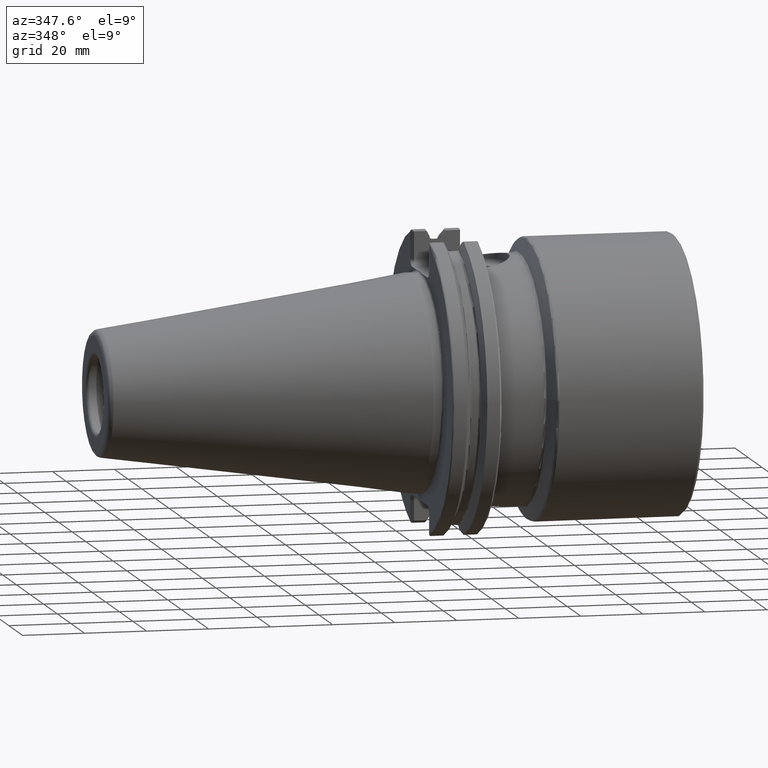
[diagram: clean part render]
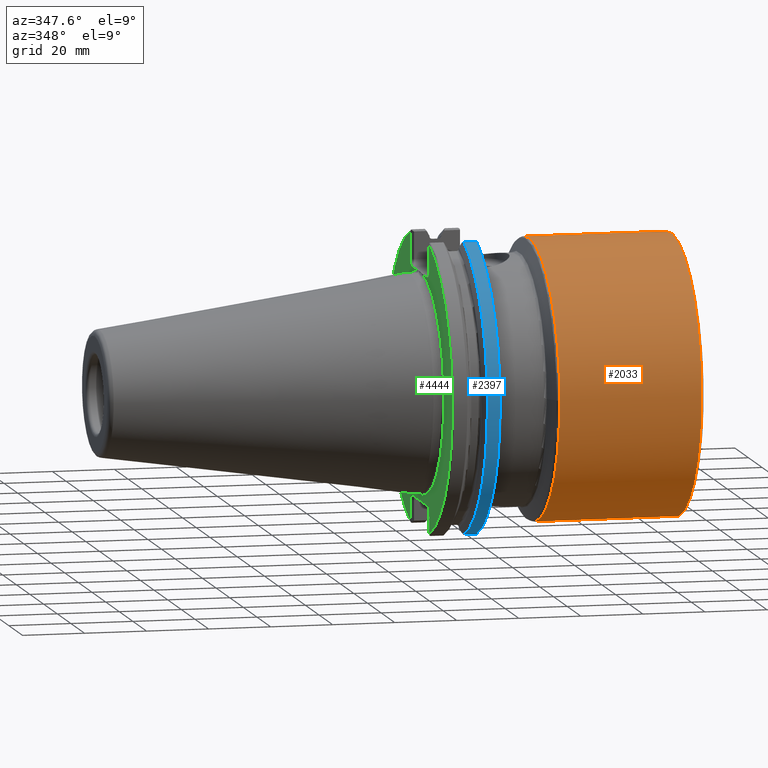
[diagram: same view with three faces highlighted in distinct colors, each labeled with its STEP entity id]
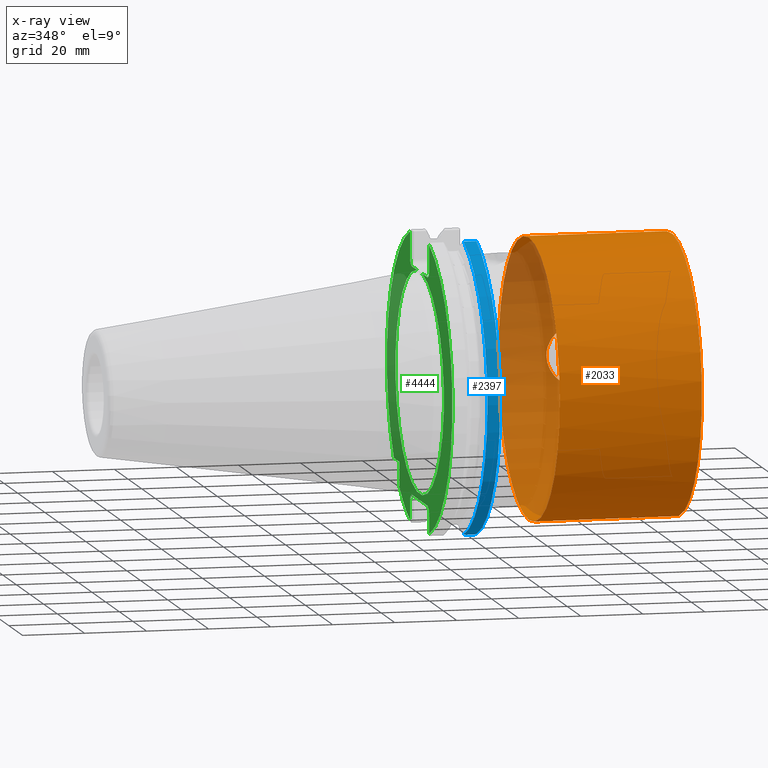
[diagram: x-ray of the same camera — body ghosted, the three highlighted faces saturated]
A machine part, auxiliary view with three faces highlighted in distinct colors.
The next image is the same camera in x-ray (body ghosted, the three faces saturated) — at least one of them is partly hidden behind the body in this view.
Their STEP definitions:

[orange] entity #2033 — the highlighted cylindrical surface (bore or boss wall) has radius 45 mm, axis along (1, 0, 0).
#27 = CARTESIAN_POINT ( 'NONE',  ( 38.46410161513776400, -44.99999999999997900, 0.0000000000000000000 ) ) ;
#52 = CARTESIAN_POINT ( 'NONE',  ( 71.90003562113419400, 44.02735162292080400, -9.313329265359543600 ) ) ;
#69 = CARTESIAN_POINT ( 'NONE',  ( 60.39478175727733600, 43.98860285602619800, -9.488183585567499600 ) ) ;
#72 = DIRECTION ( 'NONE',  ( 1.541976423090495600E-016, -1.000000000000000000, 0.0000000000000000000 ) ) ;
#105 = CARTESIAN_POINT ( 'NONE',  ( 65.42444782925717600, 43.70879802771243300, -10.70241313475867400 ) ) ;
#137 = CARTESIAN_POINT ( 'NONE',  ( 75.37430193632738500, 44.51129379908292800, 6.620265131265878000 ) ) ;
#153 = CARTESIAN_POINT ( 'NONE',  ( 75.84590907209656100, 44.59249641784459300, 6.049169306694206000 ) ) ;
#162 = CARTESIAN_POINT ( 'NONE',  ( 77.94091949939269200, 44.99807813984897800, -0.5577570655659305200 ) ) ;
#175 = CARTESIAN_POINT ( 'NONE',  ( 54.35365161772081400, 44.91625624688162300, -2.767639284305683800 ) ) ;
#180 = CIRCLE ( 'NONE', #2338, 44.99999999999998600 ) ;
#190 = CARTESIAN_POINT ( 'NONE',  ( 77.80984129892287600, 44.97062920526236200, 1.667294260822532700 ) ) ;
#328 = CARTESIAN_POINT ( 'NONE',  ( 85.00000000000000000, 1.040834085586084300E-014, 0.0000000000000000000 ) ) ;
#490 = CARTESIAN_POINT ( 'NONE',  ( 57.89363752307373500, 44.29752683756910200, -7.920172409126348800 ) ) ;
#506 = CARTESIAN_POINT ( 'NONE',  ( 70.83601708305057800, 43.92497691112866000, 9.778520601479103300 ) ) ;
#524 = CARTESIAN_POINT ( 'NONE',  ( 67.22854445854062500, 43.71750520151897500, 10.66740449968390600 ) ) ;
#537 = CARTESIAN_POINT ( 'NONE',  ( 54.73224721053692600, 44.84003310014237800, 3.805763263975531400 ) ) ;
#551 = CARTESIAN_POINT ( 'NONE',  ( 54.46822403569261400, 44.89290685688985100, -3.122503607286800400 ) ) ;
#569 = CARTESIAN_POINT ( 'NONE',  ( 75.40044018337727000, 44.51447389963661300, -6.618923357424444400 ) ) ;
#584 = CARTESIAN_POINT ( 'NONE',  ( 54.89450760286075600, 44.80809503385973600, -4.164682744786102100 ) ) ;
#812 = CARTESIAN_POINT ( 'NONE',  ( 58.47413207708959200, 44.21340650215083200, -8.390657472239619000 ) ) ;
#869 = CARTESIAN_POINT ( 'NONE',  ( 66.92025691942701800, 43.71107230040041700, -10.69309708904402500 ) ) ;
#885 = CARTESIAN_POINT ( 'NONE',  ( 57.28954367964536900, 44.38754338903249400, 7.403128390616099200 ) ) ;
#901 = CARTESIAN_POINT ( 'NONE',  ( 60.01613902499774900, 44.02817336635403200, 9.303026430986715700 ) ) ;
#916 = CARTESIAN_POINT ( 'NONE',  ( 54.34934223809159400, 44.91708765970924600, 2.753429940184347800 ) ) ;
#934 = CARTESIAN_POINT ( 'NONE',  ( 77.73605484598537900, 44.95525456207732200, 2.038625370242406200 ) ) ;
#945 = DIRECTION ( 'NONE',  ( 0.0000000000000000000, 1.000000000000000000, 0.0000000000000000000 ) ) ;
#949 = CARTESIAN_POINT ( 'NONE',  ( 77.96994379625560600, 45.00420850572293600, 0.1848547973395575400 ) ) ;
#1200 = CARTESIAN_POINT ( 'NONE',  ( 64.67906063997020300, 43.72109900425032000, -10.65205021556668400 ) ) ;
#1268 = CARTESIAN_POINT ( 'NONE',  ( 77.45448429777299300, 44.89736696569222800, 3.122509265549864700 ) ) ;
#1285 = CARTESIAN_POINT ( 'NONE',  ( 56.51539294948750600, 44.51294984147973100, 6.608459027419475400 ) ) ;
#1301 = CARTESIAN_POINT ( 'NONE',  ( 74.06138124623892300, 44.30486114288315500, -7.882907356369617700 ) ) ;
#1303 = CYLINDRICAL_SURFACE ( 'NONE', #2678, 44.99999999999998600 ) ;
#1314 = CARTESIAN_POINT ( 'NONE',  ( 73.45271816152785500, 44.21709098796920000, 8.371081059242573700 ) ) ;
#1332 = CARTESIAN_POINT ( 'NONE',  ( 54.73896974231433900, 44.83875738024021700, -3.822165804208181000 ) ) ;
#1339 = VERTEX_POINT ( 'NONE', #4103 ) ;
#1593 = CARTESIAN_POINT ( 'NONE',  ( 71.23379226092150400, 43.95851828970751300, -9.629072499655318800 ) ) ;
#1624 = CARTESIAN_POINT ( 'NONE',  ( 59.08997437277368200, 44.13286377930020900, -8.798831007693662400 ) ) ;
#1642 = CARTESIAN_POINT ( 'NONE',  ( 72.83762053793576300, 44.13623059699784100, 8.782128551526643200 ) ) ;
#1660 = CARTESIAN_POINT ( 'NONE',  ( 54.24771489875005400, 44.93798287623813100, 2.389642962334432000 ) ) ;
#1675 = CARTESIAN_POINT ( 'NONE',  ( 75.12372438535628300, 44.46954105147541000, 6.894248721935542600 ) ) ;
#1691 = CARTESIAN_POINT ( 'NONE',  ( 53.95941158792783900, 44.99801887039363600, -0.5645237651185263100 ) ) ;
#1710 = CARTESIAN_POINT ( 'NONE',  ( 76.06694252984947000, 44.63194870259871300, 5.752060388212218100 ) ) ;
#1848 = DIRECTION ( 'NONE',  ( 1.000000000000000000, 1.192422072363500000E-016, -0.0000000000000000000 ) ) ;
#1912 = CARTESIAN_POINT ( 'NONE',  ( 57.89363752307375000, 44.29752683756911600, -7.920172409126348800 ) ) ;
#1944 = CARTESIAN_POINT ( 'NONE',  ( 63.20985805438897400, 43.77152759219351500, -10.44349674055077100 ) ) ;
#1963 = CARTESIAN_POINT ( 'NONE',  ( 61.42630778517457200, 43.89379301857875500, -9.917135378069129800 ) ) ;
#2027 = CARTESIAN_POINT ( 'NONE',  ( 76.47823273955080500, 44.70730609325502100, 5.133597723336455600 ) ) ;
#2033 = ADVANCED_FACE ( 'NONE', ( #3080, #4132, #4794 ), #1303, .T. ) ;
#2044 = CARTESIAN_POINT ( 'NONE',  ( 53.98961713966304600, 44.99165072175181000, -0.9425976185715468900 ) ) ;
#2059 = CARTESIAN_POINT ( 'NONE',  ( 57.02360715092439800, 44.42954883936516100, 7.147700625910324000 ) ) ;
#2075 = CARTESIAN_POINT ( 'NONE',  ( 54.59200761598880500, 44.86803194271266900, 3.462058614932128600 ) ) ;
#2087 = CARTESIAN_POINT ( 'NONE',  ( 77.91200009208067500, 44.99199067505092800, 0.9263565002198330700 ) ) ;
#2210 = EDGE_CURVE ( 'NONE', #4102, #4102, #180, .T. ) ;
#2315 = CARTESIAN_POINT ( 'NONE',  ( 69.11222265972185100, 43.79808846541962500, -10.33140115065691900 ) ) ;
#2337 = CARTESIAN_POINT ( 'NONE',  ( 73.76839411891661800, 44.26273869859369400, -8.115350236733524600 ) ) ;
#2338 = AXIS2_PLACEMENT_3D ( 'NONE', #2372, #3846, #72 ) ;
#2342 = EDGE_CURVE ( 'NONE', #1339, #1339, #3844, .T. ) ;
#2353 = CARTESIAN_POINT ( 'NONE',  ( 70.18937618701726000, 43.87108701370851800, -10.01725092493732400 ) ) ;
#2369 = CARTESIAN_POINT ( 'NONE',  ( 64.30947337595260600, 43.73102405106693200, -10.61135469325287600 ) ) ;
#2372 = CARTESIAN_POINT ( 'NONE',  ( 38.46410161513776400, 4.859297616723373500E-015, 0.0000000000000000000 ) ) ;
#2401 = CARTESIAN_POINT ( 'NONE',  ( 62.78239890829976100, 43.79460691976139900, 10.34660967404548700 ) ) ;
#2417 = CARTESIAN_POINT ( 'NONE',  ( 76.66936202290338500, 44.74338168933786600, 4.810513443017668100 ) ) ;
#2423 = EDGE_LOOP ( 'NONE', ( #2671 ) ) ;
#2428 = CARTESIAN_POINT ( 'NONE',  ( 56.27167488358088600, 44.55460568946166700, 6.322665329171624800 ) ) ;
#2442 = CARTESIAN_POINT ( 'NONE',  ( 54.01008400836804000, 44.98717823931671900, 1.297916774674282300 ) ) ;
#2462 = CARTESIAN_POINT ( 'NONE',  ( 68.71314929485852500, 43.77256402396591300, 10.43917710226828000 ) ) ;
#2671 = ORIENTED_EDGE ( 'NONE', *, *, #2210, .T. ) ;
#2678 = AXIS2_PLACEMENT_3D ( 'NONE', #328, #1848, #2977 ) ;
#2766 = CARTESIAN_POINT ( 'NONE',  ( 62.48889838732863900, 43.81284704047908500, -10.27097818451150400 ) ) ;
#2779 = CARTESIAN_POINT ( 'NONE',  ( 77.18643789234413100, 44.84296669187316600, 3.814880942372196300 ) ) ;
#2791 = CARTESIAN_POINT ( 'NONE',  ( 70.48955986145237800, 43.89512352656871000, 9.911240276884715400 ) ) ;
#2808 = CARTESIAN_POINT ( 'NONE',  ( 55.20590339567338100, 44.74750882996946200, 4.807292718876730000 ) ) ;
#2823 = CARTESIAN_POINT ( 'NONE',  ( 64.25851007343220500, 43.72883191861261300, 10.62116688679695100 ) ) ;
#2834 = CARTESIAN_POINT ( 'NONE',  ( 60.68659619071898700, 43.95991051847207100, 9.620427119483435900 ) ) ;
#2909 = CARTESIAN_POINT ( 'NONE',  ( 56.77914868589793000, 44.46774612841544200, -6.925243145361628500 ) ) ;
#2977 = DIRECTION ( 'NONE',  ( 0.0000000000000000000, 1.000000000000000000, 0.0000000000000000000 ) ) ;
#3045 = ORIENTED_EDGE ( 'NONE', *, *, #2342, .F. ) ;
#3080 = FACE_OUTER_BOUND ( 'NONE', #2423, .T. ) ;
#3151 = CARTESIAN_POINT ( 'NONE',  ( 66.48434612934085000, 43.70510367604377000, 10.71746490075128100 ) ) ;
#3168 = CARTESIAN_POINT ( 'NONE',  ( 77.56855696678826500, 44.92065709463111700, -2.769003522068281600 ) ) ;
#3183 = CARTESIAN_POINT ( 'NONE',  ( 61.02754925430426900, 43.92819817703657700, 9.763745851938457700 ) ) ;
#3197 = CARTESIAN_POINT ( 'NONE',  ( 74.89607526963641200, 44.43059850095205800, -7.153021317196022200 ) ) ;
#3215 = CARTESIAN_POINT ( 'NONE',  ( 76.67667904199517200, 44.74469851274773900, -4.797420614106591200 ) ) ;
#3232 = CARTESIAN_POINT ( 'NONE',  ( 55.41079762319334600, 44.70873174865143100, -5.154527828970183000 ) ) ;
#3324 = AXIS2_PLACEMENT_3D ( 'NONE', #4291, #3594, #945 ) ;
#3422 = EDGE_CURVE ( 'NONE', #3993, #3993, #4604, .T. ) ;
#3435 = CARTESIAN_POINT ( 'NONE',  ( 72.85375173327413700, 44.14112516439458700, -8.752000768657344700 ) ) ;
#3458 = CARTESIAN_POINT ( 'NONE',  ( 60.06243985299460100, 44.02327157975354100, -9.326512345529838700 ) ) ;
#3506 = CARTESIAN_POINT ( 'NONE',  ( 67.65743578982852600, 43.72945797390526900, -10.61856981852745300 ) ) ;
#3523 = CARTESIAN_POINT ( 'NONE',  ( 71.51882932083988500, 43.98997466550910200, 9.481834776276423700 ) ) ;
#3534 = CARTESIAN_POINT ( 'NONE',  ( 58.12110719203979400, 44.26236803744251300, 8.129209558299541200 ) ) ;
#3550 = CARTESIAN_POINT ( 'NONE',  ( 53.93688355918092000, 45.00276092809517800, 0.5595232036748664100 ) ) ;
#3569 = CARTESIAN_POINT ( 'NONE',  ( 76.28513879431376700, 44.67161194163179500, -5.436025761676113200 ) ) ;
#3585 = CARTESIAN_POINT ( 'NONE',  ( 59.68532694094247400, 44.06488320541675600, 9.128165455464362300 ) ) ;
#3594 = DIRECTION ( 'NONE',  ( 1.000000000000000000, 1.192422072363500000E-016, -0.0000000000000000000 ) ) ;
#3616 = CARTESIAN_POINT ( 'NONE',  ( 57.89363752307373500, 44.29752683756910200, -7.920172409126348800 ) ) ;
#3842 = ORIENTED_EDGE ( 'NONE', *, *, #3422, .T. ) ;
#3843 = CARTESIAN_POINT ( 'NONE',  ( 69.83183398259274100, 43.84447156785542900, -10.13275460553733300 ) ) ;
#3844 = CIRCLE ( 'NONE', #3324, 44.99999999999997200 ) ;
#3846 = DIRECTION ( 'NONE',  ( 1.000000000000000000, 1.192422072363500000E-016, -0.0000000000000000000 ) ) ;
#3893 = CARTESIAN_POINT ( 'NONE',  ( 74.31500717810566000, 44.34236175825076700, 7.668864784641067800 ) ) ;
#3906 = CARTESIAN_POINT ( 'NONE',  ( 55.59173443163143700, 44.67446503909010100, 5.435817648118464800 ) ) ;
#3923 = CARTESIAN_POINT ( 'NONE',  ( 77.80835152896069900, 44.97028854202290700, -1.675217008888071100 ) ) ;
#3940 = CARTESIAN_POINT ( 'NONE',  ( 54.09295841488070500, 44.97004565052546400, -1.682890111773069200 ) ) ;
#3954 = CARTESIAN_POINT ( 'NONE',  ( 71.85655432339292800, 44.02528996769844800, 9.317027506763960100 ) ) ;
#3986 = CARTESIAN_POINT ( 'NONE',  ( 57.31314296905793500, 44.38164717298737100, -7.449687346013122100 ) ) ;
#3993 = VERTEX_POINT ( 'NONE', #1912 ) ;
#4102 = VERTEX_POINT ( 'NONE', #27 ) ;
#4103 = CARTESIAN_POINT ( 'NONE',  ( 84.29999999999999700, 44.99999999999997900, 0.0000000000000000000 ) ) ;
#4132 = FACE_OUTER_BOUND ( 'NONE', #4642, .T. ) ;
#4211 = EDGE_LOOP ( 'NONE', ( #3842 ) ) ;
#4219 = CARTESIAN_POINT ( 'NONE',  ( 73.16399971289277500, 44.18080404677303400, -8.550175456999690800 ) ) ;
#4247 = CARTESIAN_POINT ( 'NONE',  ( 61.07586139577306700, 43.92392524203636100, -9.783230566159042900 ) ) ;
#4265 = CARTESIAN_POINT ( 'NONE',  ( 76.07436695318918400, 44.63321413582743700, -5.741369971408978800 ) ) ;
#4280 = CARTESIAN_POINT ( 'NONE',  ( 58.72017183582656200, 44.18003061922157600, 8.560037408916890900 ) ) ;
#4291 = CARTESIAN_POINT ( 'NONE',  ( 84.29999999999999700, 1.032487131079539800E-014, 0.0000000000000000000 ) ) ;
#4293 = CARTESIAN_POINT ( 'NONE',  ( 65.00082366556253500, 43.71075836848814300, 10.69437908829745600 ) ) ;
#4309 = CARTESIAN_POINT ( 'NONE',  ( 62.06715022578257600, 43.84138693358743700, 10.14899523639942200 ) ) ;
#4323 = CARTESIAN_POINT ( 'NONE',  ( 77.32771940785292500, 44.87129104398532300, -3.466744444206803600 ) ) ;
#4387 = CARTESIAN_POINT ( 'NONE',  ( 55.82336989078954300, 44.63213261157421400, -5.771670200768452800 ) ) ;
#4568 = CARTESIAN_POINT ( 'NONE',  ( 68.75016530196586500, 43.77827690902204700, -10.41476599821653300 ) ) ;
#4585 = CARTESIAN_POINT ( 'NONE',  ( 65.80126705459878200, 43.70646062735313100, -10.71192518557091400 ) ) ;
#4604 = B_SPLINE_CURVE_WITH_KNOTS ( 'NONE', 3,
 ( #490, #812, #1624, #3458, #69, #4247, #1963, #2766, #1944, #2369, #1200, #105, #4585, #869, #3506, #4568, #2315, #3843, #2353, #1593, #52, #3435, #4219, #2337, #1301, #3197, #569, #4265, #3569, #3215, #4673, #4323, #3168, #3923, #4692, #162, #949, #2087, #190, #934, #1268, #2779, #2417, #2027, #1710, #153, #137, #1675, #4725, #3893, #1314, #1642, #3954, #3523, #506, #2791, #4660, #2462, #524, #3151, #4293, #2823, #2401, #4309, #3183, #2834, #901, #3585, #4280, #3534, #885, #2059, #1285, #2428, #3906, #2808, #537, #2075, #916, #1660, #2442, #3550, #1691, #2044, #3940, #4709, #175, #551, #1332, #584, #3232, #4387, #2909, #3986, #3616 ),
 .UNSPECIFIED., .T., .F.,
 ( 4, 2, 2, 2, 2, 2, 2, 2, 2, 2, 2, 2, 2, 2, 2, 2, 2, 2, 1, 2, 2, 2, 2, 2, 2, 2, 2, 2, 2, 2, 2, 2, 2, 2, 2, 2, 2, 2, 2, 2, 2, 2, 2, 2, 2, 2, 2, 4 ),
 ( 0.0000000000000000000, 0.002223430254305140900, 0.003335145381457703400, 0.004446860508610266300, 0.006670290762915392900, 0.007782005890067934100, 0.008893721017220477000, 0.01111715127152555900, 0.01222886639867810200, 0.01334058152583064200, 0.01556401178013572300, 0.01667572690728824600, 0.01778744203444076300, 0.02001087228874583500, 0.02112258741589839000, 0.02223430254305093800, 0.02445773279735606300, 0.02556944792450861400, 0.02668116305166116900, 0.02779287817881372400, 0.02890459330596627900, 0.03112802356027139000, 0.03223973868742394800, 0.03335145381457650000, 0.03446316894172905800, 0.03557488406888161000, 0.03779831432318669900, 0.03891002945033921600, 0.04002174457749174000, 0.04224517483179674600, 0.04446860508610174500, 0.04669203534040675800, 0.04891546559471176400, 0.05002718072186425300, 0.05113889584901674300, 0.05336232610332173500, 0.05447404123047421000, 0.05558575635762669900, 0.05780918661193165000, 0.05892090173908413200, 0.06003261686623660000, 0.06225604712054155100, 0.06336776224769402600, 0.06447947737484650800, 0.06559119250199897700, 0.06670290762915145900, 0.06892633788345638200, 0.07114976813776131800 ),
 .UNSPECIFIED. ) ;
#4642 = EDGE_LOOP ( 'NONE', ( #3045 ) ) ;
#4660 = CARTESIAN_POINT ( 'NONE',  ( 69.43543941387133600, 43.81446702072543800, 10.26404855041283100 ) ) ;
#4673 = CARTESIAN_POINT ( 'NONE',  ( 76.85383512278043800, 44.77870730253668800, -4.469915162798598000 ) ) ;
#4692 = CARTESIAN_POINT ( 'NONE',  ( 77.86774618481325700, 44.98272681278335500, -1.300932259662530800 ) ) ;
#4709 = CARTESIAN_POINT ( 'NONE',  ( 54.16602007999311000, 44.95482494348556900, -2.047832206049628100 ) ) ;
#4725 = CARTESIAN_POINT ( 'NONE',  ( 74.59327256950621200, 44.38493674793466700, 7.419443149630944300 ) ) ;
#4794 = FACE_BOUND ( 'NONE', #4211, .T. ) ;

[blue] entity #2397 — the highlighted cylindrical surface (partial cylindrical patch) has radius 48.725 mm, axis along (-1, -0, -0).
#45 = VERTEX_POINT ( 'NONE', #2926 ) ;
#90 = VERTEX_POINT ( 'NONE', #4281 ) ;
#361 = LINE ( 'NONE', #2570, #2911 ) ;
#392 = CARTESIAN_POINT ( 'NONE',  ( -110.3186507936507900, -13.62981141010641300, -46.77984465477555900 ) ) ;
#582 = DIRECTION ( 'NONE',  ( -1.000000000000000000, -0.0000000000000000000, -0.0000000000000000000 ) ) ;
#588 = FACE_OUTER_BOUND ( 'NONE', #4544, .T. ) ;
#596 = CARTESIAN_POINT ( 'NONE',  ( -110.3186507936507900, 0.0000000000000000000, 0.0000000000000000000 ) ) ;
#705 = ORIENTED_EDGE ( 'NONE', *, *, #3016, .T. ) ;
#1009 = VERTEX_POINT ( 'NONE', #3296 ) ;
#1014 = DIRECTION ( 'NONE',  ( 0.0000000000000000000, 0.0000000000000000000, 1.000000000000000000 ) ) ;
#1034 = VERTEX_POINT ( 'NONE', #4411 ) ;
#1220 = ORIENTED_EDGE ( 'NONE', *, *, #3451, .T. ) ;
#1351 = DIRECTION ( 'NONE',  ( -1.000000000000000000, -0.0000000000000000000, -0.0000000000000000000 ) ) ;
#2121 = DIRECTION ( 'NONE',  ( 0.0000000000000000000, 0.0000000000000000000, 1.000000000000000000 ) ) ;
#2124 = CARTESIAN_POINT ( 'NONE',  ( 18.45000000000000600, 0.0000000000000000000, 0.0000000000000000000 ) ) ;
#2397 = ADVANCED_FACE ( 'NONE', ( #588 ), #3348, .T. ) ;
#2414 = EDGE_CURVE ( 'NONE', #1034, #45, #4618, .T. ) ;
#2562 = VECTOR ( 'NONE', #2735, 1000.000000000000000 ) ;
#2570 = CARTESIAN_POINT ( 'NONE',  ( -110.3186507936507900, -13.80224425262893800, 46.72925934134599400 ) ) ;
#2574 = AXIS2_PLACEMENT_3D ( 'NONE', #596, #582, #4349 ) ;
#2735 = DIRECTION ( 'NONE',  ( 1.000000000000000000, 0.0000000000000000000, 0.0000000000000000000 ) ) ;
#2765 = ORIENTED_EDGE ( 'NONE', *, *, #2414, .F. ) ;
#2830 = AXIS2_PLACEMENT_3D ( 'NONE', #2124, #3597, #1014 ) ;
#2911 = VECTOR ( 'NONE', #3673, 1000.000000000000000 ) ;
#2926 = CARTESIAN_POINT ( 'NONE',  ( 14.33316150746190200, -13.80224425262895400, 46.72925934134598700 ) ) ;
#2983 = AXIS2_PLACEMENT_3D ( 'NONE', #3242, #1351, #2121 ) ;
#3016 = EDGE_CURVE ( 'NONE', #1034, #90, #3267, .T. ) ;
#3242 = CARTESIAN_POINT ( 'NONE',  ( 14.33316150746190200, 0.0000000000000000000, 0.0000000000000000000 ) ) ;
#3267 = LINE ( 'NONE', #392, #2562 ) ;
#3296 = CARTESIAN_POINT ( 'NONE',  ( 18.45000000000000600, -13.80224425262893500, 46.72925934134599400 ) ) ;
#3309 = EDGE_CURVE ( 'NONE', #1009, #45, #361, .T. ) ;
#3348 = CYLINDRICAL_SURFACE ( 'NONE', #2574, 48.72500000000000100 ) ;
#3451 = EDGE_CURVE ( 'NONE', #90, #1009, #4753, .T. ) ;
#3597 = DIRECTION ( 'NONE',  ( -1.000000000000000000, -0.0000000000000000000, -0.0000000000000000000 ) ) ;
#3673 = DIRECTION ( 'NONE',  ( -1.000000000000000000, -0.0000000000000000000, -0.0000000000000000000 ) ) ;
#3832 = ORIENTED_EDGE ( 'NONE', *, *, #3309, .T. ) ;
#4281 = CARTESIAN_POINT ( 'NONE',  ( 18.45000000000000600, -13.62981141010643100, -46.77984465477555200 ) ) ;
#4349 = DIRECTION ( 'NONE',  ( 0.0000000000000000000, 0.0000000000000000000, 1.000000000000000000 ) ) ;
#4411 = CARTESIAN_POINT ( 'NONE',  ( 14.33316150746190200, -13.62981141010643100, -46.77984465477555200 ) ) ;
#4544 = EDGE_LOOP ( 'NONE', ( #1220, #3832, #2765, #705 ) ) ;
#4618 = CIRCLE ( 'NONE', #2983, 48.72500000000000100 ) ;
#4753 = CIRCLE ( 'NONE', #2830, 48.72500000000000100 ) ;

[green] entity #4444 — the highlighted planar face has unit normal (1, 0, 0).
#9 = DIRECTION ( 'NONE',  ( -0.0000000000000000000, -1.000000000000000000, -0.0000000000000000000 ) ) ;
#64 = CARTESIAN_POINT ( 'NONE',  ( 3.199999999999998400, 13.85000000000000500, -38.32842712474618500 ) ) ;
#160 = ORIENTED_EDGE ( 'NONE', *, *, #4089, .T. ) ;
#181 = DIRECTION ( 'NONE',  ( -0.0000000000000000000, -1.000000000000000000, -0.0000000000000000000 ) ) ;
#205 = CARTESIAN_POINT ( 'NONE',  ( 3.199999999999998000, 13.85000000000001200, 46.08896966737268700 ) ) ;
#225 = CARTESIAN_POINT ( 'NONE',  ( 3.199999999999998000, -3.991945014651408800, 35.29999999999999700 ) ) ;
#273 = ORIENTED_EDGE ( 'NONE', *, *, #1349, .F. ) ;
#380 = DIRECTION ( 'NONE',  ( 0.0000000000000000000, 0.0000000000000000000, 1.000000000000000000 ) ) ;
#386 = PLANE ( 'NONE',  #1991 ) ;
#441 = EDGE_CURVE ( 'NONE', #2363, #2459, #866, .T. ) ;
#543 = AXIS2_PLACEMENT_3D ( 'NONE', #3604, #4373, #3992 ) ;
#604 = CARTESIAN_POINT ( 'NONE',  ( 3.199999999999997100, -13.85000000000001200, 36.12842712474618900 ) ) ;
#657 = CARTESIAN_POINT ( 'NONE',  ( 3.199999999999997100, 12.67842712474619300, 35.29999999999999700 ) ) ;
#674 = CARTESIAN_POINT ( 'NONE',  ( 3.199999999999994400, 13.85000000000001000, -48.72500000000000100 ) ) ;
#683 = CARTESIAN_POINT ( 'NONE',  ( 3.199999999999998000, -13.85000000000001200, 46.08896966737334100 ) ) ;
#698 = VERTEX_POINT ( 'NONE', #2689 ) ;
#716 = VECTOR ( 'NONE', #1402, 1000.000000000000000 ) ;
#769 = CARTESIAN_POINT ( 'NONE',  ( 3.199999999999998400, 12.67842712474619300, -37.50000000000000000 ) ) ;
#778 = CARTESIAN_POINT ( 'NONE',  ( 3.199999999999998800, 35.52499999999999900, 0.0000000000000000000 ) ) ;
#785 = DIRECTION ( 'NONE',  ( -0.0000000000000000000, -0.0000000000000000000, 1.000000000000000000 ) ) ;
#794 = CARTESIAN_POINT ( 'NONE',  ( 3.199999999999994400, -11.02157287525380400, -37.50000000000000000 ) ) ;
#866 = CIRCLE ( 'NONE', #1695, 48.12500000000000000 ) ;
#882 = VERTEX_POINT ( 'NONE', #4347 ) ;
#895 = FACE_OUTER_BOUND ( 'NONE', #1584, .T. ) ;
#900 = VECTOR ( 'NONE', #181, 1000.000000000000000 ) ;
#927 =( BOUNDED_CURVE ( )  B_SPLINE_CURVE ( 3, ( #3394, #64, #769, #2712 ),
 .UNSPECIFIED., .F., .T. ) 
 B_SPLINE_CURVE_WITH_KNOTS ( ( 4, 4 ),
 ( 3.141592653589793100, 4.712388980384687900 ),
 .UNSPECIFIED. ) 
 CURVE ( )  GEOMETRIC_REPRESENTATION_ITEM ( )  RATIONAL_B_SPLINE_CURVE ( ( 1.000000000000000000, 0.8047378541243654900, 0.8047378541243654900, 1.000000000000000000 ) ) 
 REPRESENTATION_ITEM ( '' )  );
#930 = VERTEX_POINT ( 'NONE', #225 ) ;
#964 = ORIENTED_EDGE ( 'NONE', *, *, #2244, .T. ) ;
#998 = DIRECTION ( 'NONE',  ( 0.0000000000000000000, -1.000000000000000000, 0.0000000000000000000 ) ) ;
#1004 = CARTESIAN_POINT ( 'NONE',  ( 3.199999999999998000, 3.991945014651408800, 35.29999999999999700 ) ) ;
#1028 = VECTOR ( 'NONE', #2271, 1000.000000000000000 ) ;
#1060 = CARTESIAN_POINT ( 'NONE',  ( 3.199999999999998000, 13.85000000000001200, 35.29999999999999700 ) ) ;
#1096 = VERTEX_POINT ( 'NONE', #683 ) ;
#1107 = VECTOR ( 'NONE', #9, 1000.000000000000000 ) ;
#1191 = EDGE_CURVE ( 'NONE', #3020, #1604, #3147, .T. ) ;
#1192 = CARTESIAN_POINT ( 'NONE',  ( 3.199999999999998000, -11.02157287525380400, 35.29999999999999700 ) ) ;
#1282 = CARTESIAN_POINT ( 'NONE',  ( 3.199999999999994400, 37.74908111464446800, -29.85000000000000100 ) ) ;
#1327 = ORIENTED_EDGE ( 'NONE', *, *, #1410, .T. ) ;
#1349 = EDGE_CURVE ( 'NONE', #3337, #4270, #2956, .T. ) ;
#1358 = DIRECTION ( 'NONE',  ( -0.0000000000000000000, -0.0000000000000000000, 1.000000000000000000 ) ) ;
#1363 = ORIENTED_EDGE ( 'NONE', *, *, #2866, .F. ) ;
#1399 = CARTESIAN_POINT ( 'NONE',  ( 3.199999999999994400, 0.0000000000000000000, 0.0000000000000000000 ) ) ;
#1402 = DIRECTION ( 'NONE',  ( 0.0000000000000000000, -1.000000000000000000, 0.0000000000000000000 ) ) ;
#1410 = EDGE_CURVE ( 'NONE', #3337, #1498, #1875, .T. ) ;
#1414 = DIRECTION ( 'NONE',  ( 0.0000000000000000000, 0.0000000000000000000, 1.000000000000000000 ) ) ;
#1419 = CARTESIAN_POINT ( 'NONE',  ( 3.199999999999994400, 0.0000000000000000000, 0.0000000000000000000 ) ) ;
#1498 = VERTEX_POINT ( 'NONE', #4860 ) ;
#1584 = EDGE_LOOP ( 'NONE', ( #964, #1363, #4584, #4245, #4134, #160, #3740, #4524, #2934, #3196, #1759, #2070, #3830, #273, #1327, #3679, #3614 ) ) ;
#1587 = CARTESIAN_POINT ( 'NONE',  ( 3.199999999999994400, 29.85000000000000100, -46.82842678932088600 ) ) ;
#1604 = VERTEX_POINT ( 'NONE', #3781 ) ;
#1666 = EDGE_CURVE ( 'NONE', #1698, #1604, #2762, .T. ) ;
#1695 = AXIS2_PLACEMENT_3D ( 'NONE', #1419, #2189, #380 ) ;
#1698 = VERTEX_POINT ( 'NONE', #794 ) ;
#1754 = CARTESIAN_POINT ( 'NONE',  ( 3.199999999999997100, 13.85000000000001200, 36.12842712474618900 ) ) ;
#1759 = ORIENTED_EDGE ( 'NONE', *, *, #4253, .T. ) ;
#1795 = VERTEX_POINT ( 'NONE', #3928 ) ;
#1875 =( BOUNDED_CURVE ( )  B_SPLINE_CURVE ( 3, ( #4403, #657, #1754, #4751 ),
 .UNSPECIFIED., .F., .F. ) 
 B_SPLINE_CURVE_WITH_KNOTS ( ( 4, 4 ),
 ( 4.712388980384689700, 6.283185307179586200 ),
 .UNSPECIFIED. ) 
 CURVE ( )  GEOMETRIC_REPRESENTATION_ITEM ( )  RATIONAL_B_SPLINE_CURVE ( ( 1.000000000000000000, 0.8047378541243649400, 0.8047378541243649400, 1.000000000000000000 ) ) 
 REPRESENTATION_ITEM ( '' )  );
#1897 = CARTESIAN_POINT ( 'NONE',  ( 3.199999999999998000, 13.85000000000001200, 48.72500000000000100 ) ) ;
#1931 = EDGE_CURVE ( 'NONE', #2929, #4390, #4679, .T. ) ;
#1933 = VECTOR ( 'NONE', #785, 1000.000000000000000 ) ;
#1991 = AXIS2_PLACEMENT_3D ( 'NONE', #778, #4904, #3813 ) ;
#2029 = EDGE_CURVE ( 'NONE', #4270, #930, #2252, .T. ) ;
#2070 = ORIENTED_EDGE ( 'NONE', *, *, #3326, .F. ) ;
#2081 = AXIS2_PLACEMENT_3D ( 'NONE', #1399, #4032, #1414 ) ;
#2141 = LINE ( 'NONE', #4195, #1107 ) ;
#2166 = VECTOR ( 'NONE', #1358, 1000.000000000000000 ) ;
#2189 = DIRECTION ( 'NONE',  ( -1.000000000000000000, -0.0000000000000000000, -0.0000000000000000000 ) ) ;
#2244 = EDGE_CURVE ( 'NONE', #2459, #882, #2141, .T. ) ;
#2252 = CIRCLE ( 'NONE', #2081, 35.52499999999999900 ) ;
#2271 = DIRECTION ( 'NONE',  ( 0.0000000000000000000, 0.0000000000000000000, -1.000000000000000000 ) ) ;
#2314 = CARTESIAN_POINT ( 'NONE',  ( 3.199999999999999300, -12.67842712474618800, -37.50000000000000000 ) ) ;
#2334 =( BOUNDED_CURVE ( )  B_SPLINE_CURVE ( 3, ( #4356, #604, #3262, #3643 ),
 .UNSPECIFIED., .F., .T. ) 
 B_SPLINE_CURVE_WITH_KNOTS ( ( 4, 4 ),
 ( 3.141592653589793100, 4.712388980384689700 ),
 .UNSPECIFIED. ) 
 CURVE ( )  GEOMETRIC_REPRESENTATION_ITEM ( )  RATIONAL_B_SPLINE_CURVE ( ( 1.000000000000000000, 0.8047378541243649400, 0.8047378541243649400, 1.000000000000000000 ) ) 
 REPRESENTATION_ITEM ( '' )  );
#2343 = LINE ( 'NONE', #1897, #1028 ) ;
#2363 = VERTEX_POINT ( 'NONE', #205 ) ;
#2459 = VERTEX_POINT ( 'NONE', #1282 ) ;
#2480 = DIRECTION ( 'NONE',  ( 0.0000000000000000000, 0.0000000000000000000, 1.000000000000000000 ) ) ;
#2507 = CARTESIAN_POINT ( 'NONE',  ( 3.199999999999998000, 13.85000000000001200, 35.29999999999999700 ) ) ;
#2583 = EDGE_CURVE ( 'NONE', #4390, #3963, #4703, .T. ) ;
#2654 = EDGE_CURVE ( 'NONE', #2363, #1498, #2343, .T. ) ;
#2689 = CARTESIAN_POINT ( 'NONE',  ( 3.199999999999998000, -13.85000000000001200, 37.29999999999999700 ) ) ;
#2712 = CARTESIAN_POINT ( 'NONE',  ( 3.199999999999994400, 11.02157287525380600, -37.50000000000000000 ) ) ;
#2762 =( BOUNDED_CURVE ( )  B_SPLINE_CURVE ( 3, ( #3402, #2314, #3755, #2997 ),
 .UNSPECIFIED., .F., .F. ) 
 B_SPLINE_CURVE_WITH_KNOTS ( ( 4, 4 ),
 ( 4.712388980384690600, 6.283185307179586200 ),
 .UNSPECIFIED. ) 
 CURVE ( )  GEOMETRIC_REPRESENTATION_ITEM ( )  RATIONAL_B_SPLINE_CURVE ( ( 1.000000000000000000, 0.8047378541243652700, 0.8047378541243652700, 1.000000000000000000 ) ) 
 REPRESENTATION_ITEM ( '' )  );
#2821 = VERTEX_POINT ( 'NONE', #1192 ) ;
#2866 = EDGE_CURVE ( 'NONE', #2929, #882, #3216, .T. ) ;
#2929 = VERTEX_POINT ( 'NONE', #4634 ) ;
#2934 = ORIENTED_EDGE ( 'NONE', *, *, #3132, .T. ) ;
#2956 = LINE ( 'NONE', #2507, #3206 ) ;
#2997 = CARTESIAN_POINT ( 'NONE',  ( 3.199999999999994400, -13.85000000000001000, -39.50000000000000000 ) ) ;
#3020 = VERTEX_POINT ( 'NONE', #3796 ) ;
#3033 = LINE ( 'NONE', #1060, #716 ) ;
#3124 = DIRECTION ( 'NONE',  ( -0.0000000000000000000, -0.0000000000000000000, 1.000000000000000000 ) ) ;
#3132 = EDGE_CURVE ( 'NONE', #3020, #1096, #4810, .T. ) ;
#3147 = LINE ( 'NONE', #3878, #3605 ) ;
#3180 = AXIS2_PLACEMENT_3D ( 'NONE', #4737, #4016, #2480 ) ;
#3196 = ORIENTED_EDGE ( 'NONE', *, *, #3205, .T. ) ;
#3204 = CARTESIAN_POINT ( 'NONE',  ( 3.199999999999998000, -13.85000000000001200, 48.72500000000000100 ) ) ;
#3205 = EDGE_CURVE ( 'NONE', #1096, #698, #3502, .T. ) ;
#3206 = VECTOR ( 'NONE', #998, 1000.000000000000000 ) ;
#3216 = LINE ( 'NONE', #1587, #1933 ) ;
#3262 = CARTESIAN_POINT ( 'NONE',  ( 3.199999999999997100, -12.67842712474619300, 35.29999999999999700 ) ) ;
#3326 = EDGE_CURVE ( 'NONE', #930, #2821, #3033, .T. ) ;
#3337 = VERTEX_POINT ( 'NONE', #4038 ) ;
#3394 = CARTESIAN_POINT ( 'NONE',  ( 3.199999999999994400, 13.85000000000001000, -39.50000000000000000 ) ) ;
#3402 = CARTESIAN_POINT ( 'NONE',  ( 3.199999999999994400, -11.02157287525380400, -37.50000000000000000 ) ) ;
#3425 = CARTESIAN_POINT ( 'NONE',  ( 3.199999999999994400, 13.85000000000001000, -39.50000000000000000 ) ) ;
#3434 = VECTOR ( 'NONE', #3960, 1000.000000000000000 ) ;
#3502 = LINE ( 'NONE', #3204, #3434 ) ;
#3604 = CARTESIAN_POINT ( 'NONE',  ( 3.199999999999994400, 0.0000000000000000000, 0.0000000000000000000 ) ) ;
#3605 = VECTOR ( 'NONE', #3124, 1000.000000000000000 ) ;
#3614 = ORIENTED_EDGE ( 'NONE', *, *, #441, .T. ) ;
#3643 = CARTESIAN_POINT ( 'NONE',  ( 3.199999999999998000, -11.02157287525380400, 35.29999999999999700 ) ) ;
#3679 = ORIENTED_EDGE ( 'NONE', *, *, #2654, .F. ) ;
#3740 = ORIENTED_EDGE ( 'NONE', *, *, #1666, .T. ) ;
#3748 = EDGE_CURVE ( 'NONE', #3963, #1795, #927, .T. ) ;
#3755 = CARTESIAN_POINT ( 'NONE',  ( 3.199999999999999300, -13.85000000000000700, -38.32842712474619200 ) ) ;
#3781 = CARTESIAN_POINT ( 'NONE',  ( 3.199999999999994400, -13.85000000000001000, -39.50000000000000000 ) ) ;
#3796 = CARTESIAN_POINT ( 'NONE',  ( 3.199999999999994400, -13.85000000000001000, -46.08896966737269500 ) ) ;
#3813 = DIRECTION ( 'NONE',  ( 0.0000000000000000000, 0.0000000000000000000, -1.000000000000000000 ) ) ;
#3830 = ORIENTED_EDGE ( 'NONE', *, *, #2029, .F. ) ;
#3878 = CARTESIAN_POINT ( 'NONE',  ( 3.199999999999994400, -13.85000000000001000, -48.72500000000000100 ) ) ;
#3928 = CARTESIAN_POINT ( 'NONE',  ( 3.199999999999994400, 11.02157287525380600, -37.50000000000000000 ) ) ;
#3960 = DIRECTION ( 'NONE',  ( 0.0000000000000000000, 0.0000000000000000000, -1.000000000000000000 ) ) ;
#3963 = VERTEX_POINT ( 'NONE', #3425 ) ;
#3992 = DIRECTION ( 'NONE',  ( 0.0000000000000000000, 0.0000000000000000000, 1.000000000000000000 ) ) ;
#4016 = DIRECTION ( 'NONE',  ( -1.000000000000000000, -0.0000000000000000000, -0.0000000000000000000 ) ) ;
#4032 = DIRECTION ( 'NONE',  ( -1.000000000000000000, -0.0000000000000000000, -0.0000000000000000000 ) ) ;
#4038 = CARTESIAN_POINT ( 'NONE',  ( 3.199999999999998000, 11.02157287525380400, 35.29999999999999700 ) ) ;
#4089 = EDGE_CURVE ( 'NONE', #1795, #1698, #4201, .T. ) ;
#4134 = ORIENTED_EDGE ( 'NONE', *, *, #3748, .T. ) ;
#4195 = CARTESIAN_POINT ( 'NONE',  ( 3.199999999999994400, 29.85000000000000100, -29.85000000000000100 ) ) ;
#4201 = LINE ( 'NONE', #4700, #900 ) ;
#4245 = ORIENTED_EDGE ( 'NONE', *, *, #2583, .T. ) ;
#4253 = EDGE_CURVE ( 'NONE', #698, #2821, #2334, .T. ) ;
#4270 = VERTEX_POINT ( 'NONE', #1004 ) ;
#4347 = CARTESIAN_POINT ( 'NONE',  ( 3.199999999999994400, 29.85000000000000100, -29.85000000000000100 ) ) ;
#4356 = CARTESIAN_POINT ( 'NONE',  ( 3.199999999999998000, -13.85000000000001200, 37.29999999999999700 ) ) ;
#4373 = DIRECTION ( 'NONE',  ( -1.000000000000000000, -0.0000000000000000000, -0.0000000000000000000 ) ) ;
#4390 = VERTEX_POINT ( 'NONE', #4426 ) ;
#4403 = CARTESIAN_POINT ( 'NONE',  ( 3.199999999999998000, 11.02157287525380400, 35.29999999999999700 ) ) ;
#4426 = CARTESIAN_POINT ( 'NONE',  ( 3.199999999999994400, 13.85000000000001000, -46.08896966737269500 ) ) ;
#4444 = ADVANCED_FACE ( 'NONE', ( #895 ), #386, .F. ) ;
#4524 = ORIENTED_EDGE ( 'NONE', *, *, #1191, .F. ) ;
#4584 = ORIENTED_EDGE ( 'NONE', *, *, #1931, .T. ) ;
#4634 = CARTESIAN_POINT ( 'NONE',  ( 3.199999999999994400, 29.85000000000000100, -37.74908111464436200 ) ) ;
#4679 = CIRCLE ( 'NONE', #3180, 48.12500000000000000 ) ;
#4700 = CARTESIAN_POINT ( 'NONE',  ( 3.199999999999994400, -13.85000000000001000, -37.50000000000000000 ) ) ;
#4703 = LINE ( 'NONE', #674, #2166 ) ;
#4737 = CARTESIAN_POINT ( 'NONE',  ( 3.199999999999994400, 0.0000000000000000000, 0.0000000000000000000 ) ) ;
#4751 = CARTESIAN_POINT ( 'NONE',  ( 3.199999999999998000, 13.85000000000001200, 37.29999999999999700 ) ) ;
#4810 = CIRCLE ( 'NONE', #543, 48.12500000000000000 ) ;
#4860 = CARTESIAN_POINT ( 'NONE',  ( 3.199999999999998000, 13.85000000000001200, 37.29999999999999700 ) ) ;
#4904 = DIRECTION ( 'NONE',  ( 1.000000000000000000, 0.0000000000000000000, 0.0000000000000000000 ) ) ;